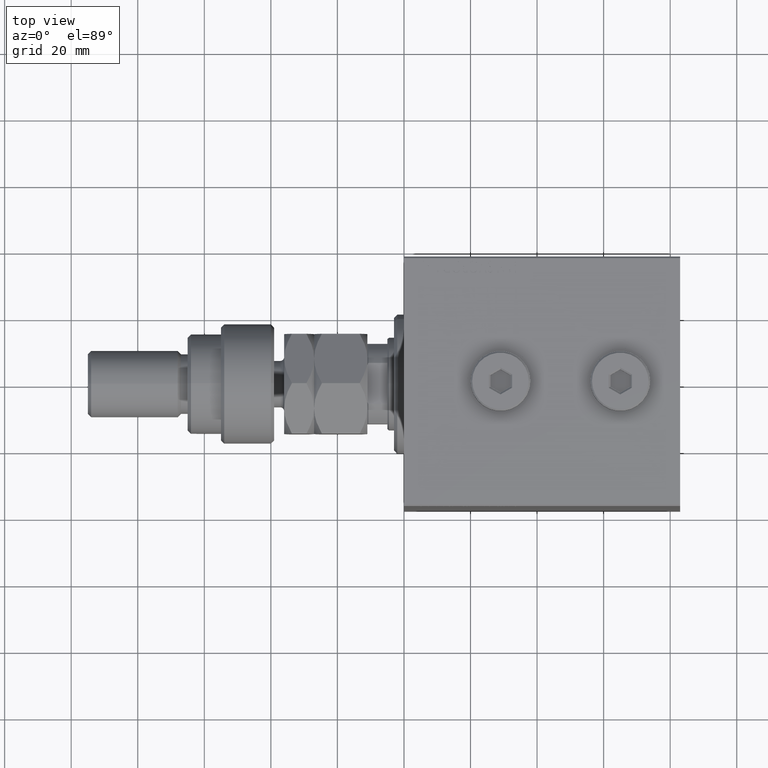
[diagram: clean part render]
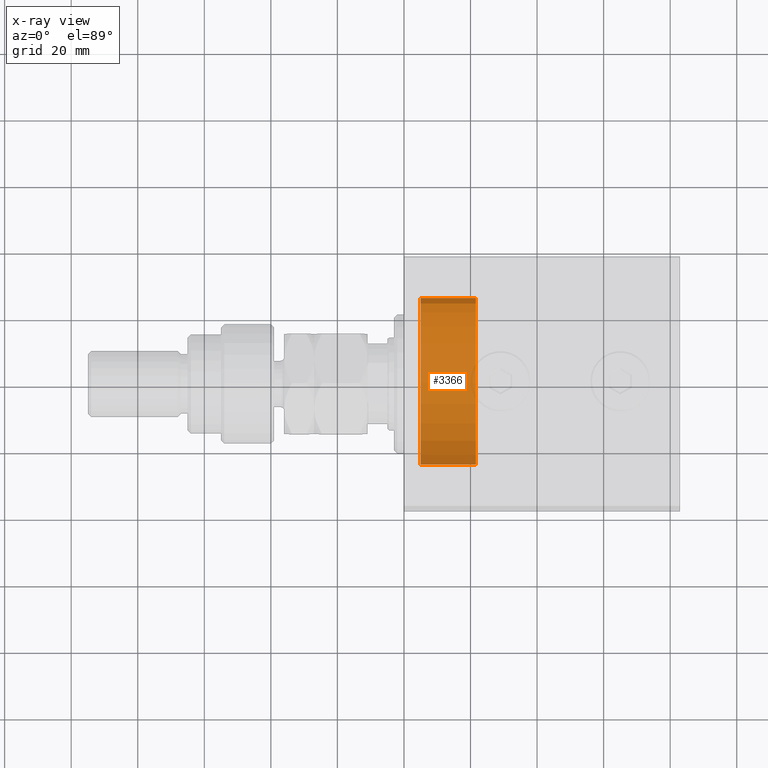
[diagram: x-ray — body ghosted, one internal face saturated and labeled with its STEP entity id]
A machine part, top view, then the same camera in x-ray: the body is ghosted and one INTERNAL B-rep face — a face not visible from any outside direction — is saturated and labeled: STEP entity #3366.
In plain terms, the highlighted cylindrical surface (partial cylindrical patch) has radius 26 mm, axis along (-1, 0, 0).
Its self-contained STEP definition (entity closure, byte-faithful):
#315 = ORIENTED_EDGE ( 'NONE', *, *, #30566, .T. ) ;
#1304 = EDGE_CURVE ( 'NONE', #28703, #11624, #25320, .T. ) ;
#2103 = LINE ( 'NONE', #42621, #21447 ) ;
#3029 = CARTESIAN_POINT ( 'NONE',  ( -21.60000000000000142, 3.184081677783117796E-15, 26.00000000000000355 ) ) ;
#3366 = ADVANCED_FACE ( 'NONE', ( #21970 ), #33125, .T. ) ;
#6660 = DIRECTION ( 'NONE',  ( 1.000000000000000000, -0.000000000000000000, -0.000000000000000000 ) ) ;
#6838 = DIRECTION ( 'NONE',  ( 0.000000000000000000, 0.000000000000000000, 1.000000000000000000 ) ) ;
#9584 = VERTEX_POINT ( 'NONE', #27551 ) ;
#11624 = VERTEX_POINT ( 'NONE', #13281 ) ;
#13281 = CARTESIAN_POINT ( 'NONE',  ( -21.60000000000000142, 0.000000000000000000, -26.00000000000000355 ) ) ;
#14684 = CARTESIAN_POINT ( 'NONE',  ( -21.60000000000000142, 0.000000000000000000, 0.000000000000000000 ) ) ;
#16376 = LINE ( 'NONE', #3029, #42918 ) ;
#16774 = DIRECTION ( 'NONE',  ( 0.000000000000000000, 0.000000000000000000, 1.000000000000000000 ) ) ;
#19141 = CARTESIAN_POINT ( 'NONE',  ( -21.60000000000000142, 3.184081677783117796E-15, 26.00000000000000355 ) ) ;
#20052 = EDGE_LOOP ( 'NONE', ( #22446, #35730, #315, #36732 ) ) ;
#20460 = AXIS2_PLACEMENT_3D ( 'NONE', #40063, #32331, #6838 ) ;
#21172 = DIRECTION ( 'NONE',  ( -1.000000000000000000, 0.000000000000000000, 0.000000000000000000 ) ) ;
#21447 = VECTOR ( 'NONE', #23481, 1000.000000000000000 ) ;
#21461 = AXIS2_PLACEMENT_3D ( 'NONE', #31834, #21172, #16774 ) ;
#21970 = FACE_OUTER_BOUND ( 'NONE', #20052, .T. ) ;
#22446 = ORIENTED_EDGE ( 'NONE', *, *, #1304, .F. ) ;
#23481 = DIRECTION ( 'NONE',  ( 1.000000000000000000, -0.000000000000000000, -0.000000000000000000 ) ) ;
#23535 = CIRCLE ( 'NONE', #20460, 26.00000000000000355 ) ;
#25320 = CIRCLE ( 'NONE', #21461, 26.00000000000000355 ) ;
#27030 = DIRECTION ( 'NONE',  ( 0.000000000000000000, 0.000000000000000000, -1.000000000000000000 ) ) ;
#27551 = CARTESIAN_POINT ( 'NONE',  ( -5.000000000000000000, 3.184081677783117796E-15, 26.00000000000000355 ) ) ;
#28703 = VERTEX_POINT ( 'NONE', #19141 ) ;
#30566 = EDGE_CURVE ( 'NONE', #9584, #34505, #23535, .T. ) ;
#31268 = EDGE_CURVE ( 'NONE', #28703, #9584, #16376, .T. ) ;
#31834 = CARTESIAN_POINT ( 'NONE',  ( -21.60000000000000142, 0.000000000000000000, 0.000000000000000000 ) ) ;
#32331 = DIRECTION ( 'NONE',  ( -1.000000000000000000, 0.000000000000000000, 0.000000000000000000 ) ) ;
#33125 = CYLINDRICAL_SURFACE ( 'NONE', #41516, 26.00000000000000355 ) ;
#34505 = VERTEX_POINT ( 'NONE', #42611 ) ;
#35730 = ORIENTED_EDGE ( 'NONE', *, *, #31268, .T. ) ;
#36732 = ORIENTED_EDGE ( 'NONE', *, *, #37624, .F. ) ;
#36994 = DIRECTION ( 'NONE',  ( 1.000000000000000000, -0.000000000000000000, -0.000000000000000000 ) ) ;
#37624 = EDGE_CURVE ( 'NONE', #11624, #34505, #2103, .T. ) ;
#40063 = CARTESIAN_POINT ( 'NONE',  ( -5.000000000000000000, 0.000000000000000000, 0.000000000000000000 ) ) ;
#41516 = AXIS2_PLACEMENT_3D ( 'NONE', #14684, #36994, #27030 ) ;
#42611 = CARTESIAN_POINT ( 'NONE',  ( -5.000000000000000000, 0.000000000000000000, -26.00000000000000355 ) ) ;
#42621 = CARTESIAN_POINT ( 'NONE',  ( -21.60000000000000142, 0.000000000000000000, -26.00000000000000355 ) ) ;
#42918 = VECTOR ( 'NONE', #6660, 1000.000000000000000 ) ;